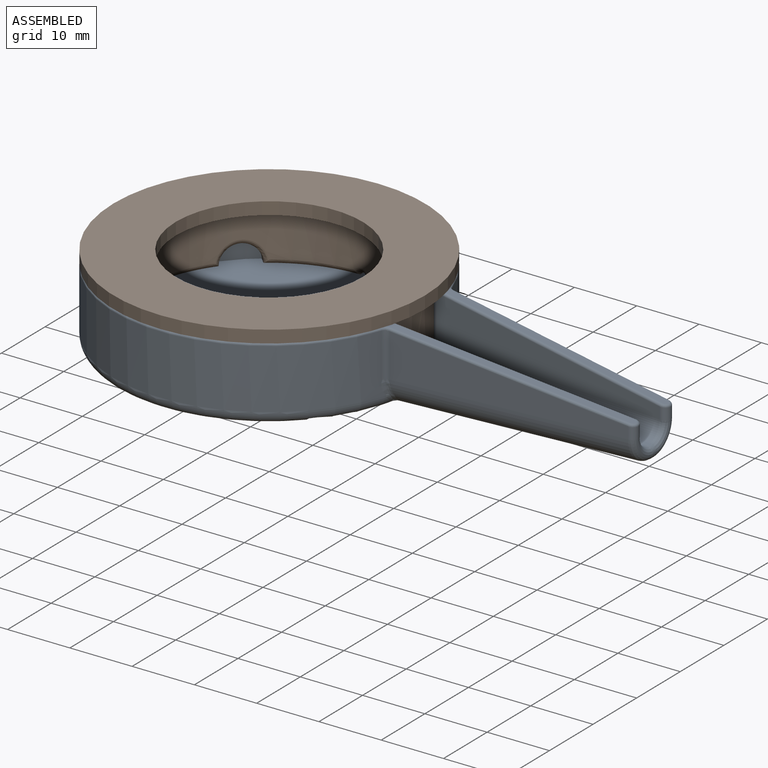
[diagram: assembled view]
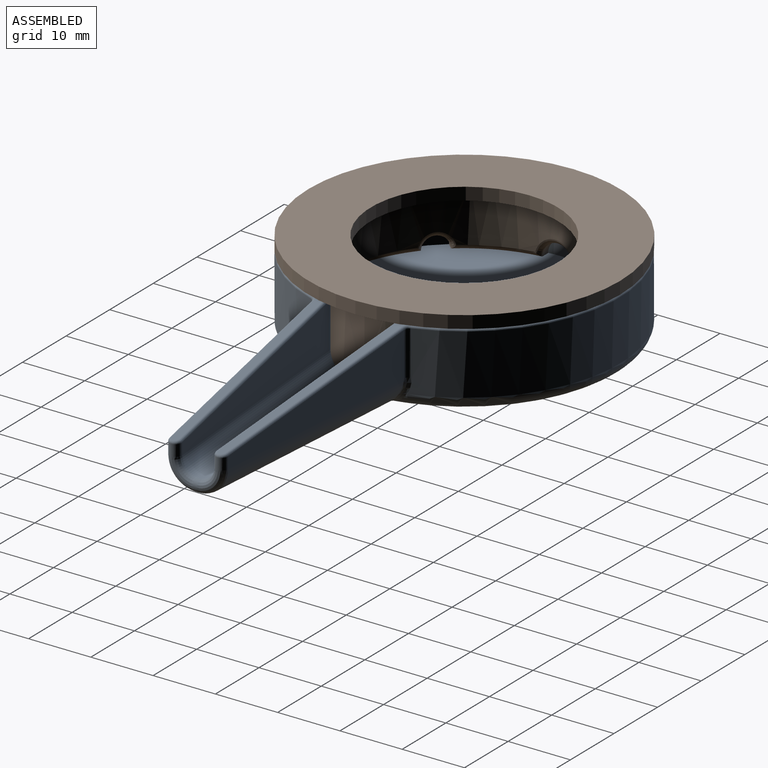
[diagram: assembled view, second angle]
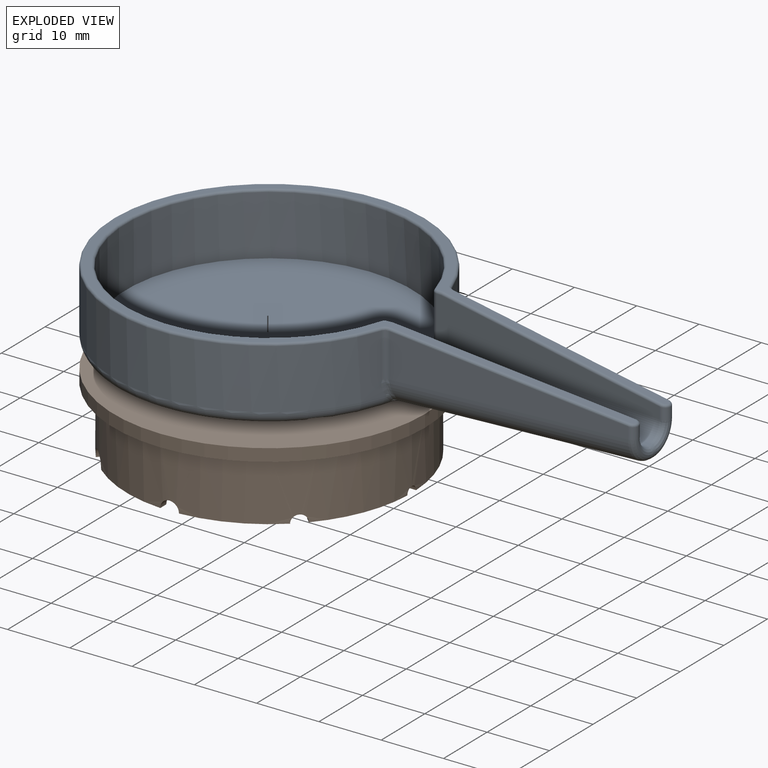
[diagram: exploded view]
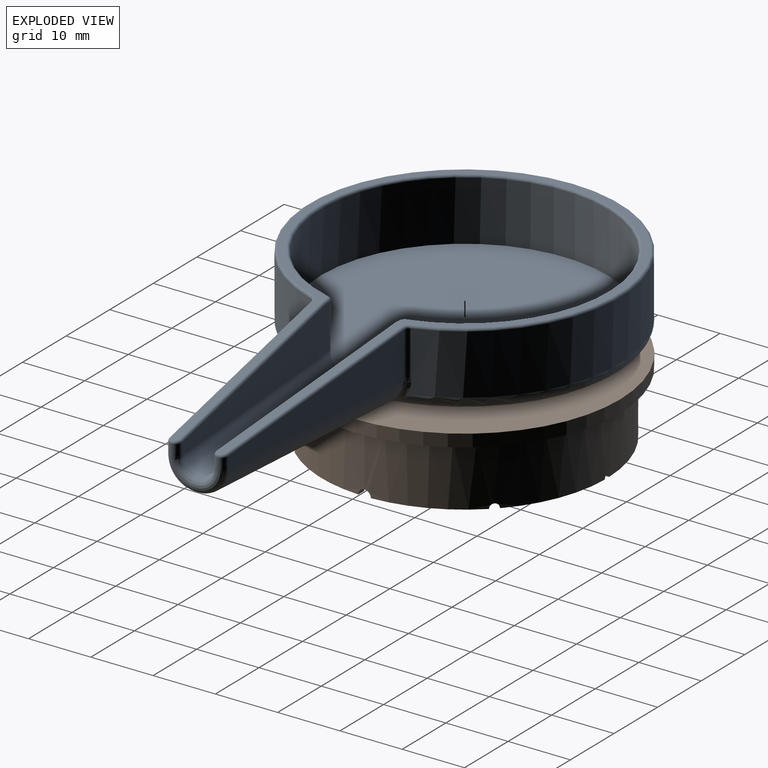
[diagram: exploded view, second angle]
ASSEMBLY  parts=2 mates=2
PART A: 55 faces, bbox 89.2x54.5x12.4 mm
  f0: plane 49.2x48.38mm, normal (0,0,1), area 166.8mm2, adj f23,f27,f38,f40,f42,f45,f47,f49
  f1: plane 36.41x7.01mm, normal (0.07,1,0), area 162.4mm2, adj f7,f21,f24,f48
  f2: cylinder r=25mm len=50mm, axis (0,0,-1), area 1350.7mm2, adj f5,f24,f25,f28,f29,f40
  f3: plane 36.41x7.01mm, normal (0.07,-1,0), area 162.4mm2, adj f6,f16,f28,f37
  f4: plane 83.85x46mm, normal (0,0,-1), area 1785.8mm2, adj f5,f6,f7,f18
  f5: torus R=23mm, axis (0,0,1), area 445.4mm2, adj f2,f4,f26,f30
  f6: cylinder r=4.5mm len=38.39mm, axis (1,0.07,0), area 261.6mm2, adj f3,f4,f17,f29,f30
  f7: cylinder r=4.5mm len=38.39mm, axis (-1,0.07,0), area 261.6mm2, adj f1,f4,f20,f25,f26
  f8: plane 37.79x7.13mm, normal (-0.07,-1,0), area 172.5mm2, adj f13,f21,f31,f52,f53,f54
  f9: cylinder r=23mm len=46mm, axis (0,0,-1), area 1267.8mm2, adj f11,f31,f32,f33,f34,f49
  f10: plane 37.79x7.13mm, normal (-0.07,1,0), area 172.5mm2, adj f12,f16,f33,f41,f43,f45
  f11: plane 84.19x46.34mm, normal (0,0,1), area 1787.4mm2, adj f9,f12,f13,f18,f32,f34
  f12: cylinder r=2.5mm len=38.21mm, axis (1,0.07,0), area 147.3mm2, adj f10,f11,f19,f34
  f13: cylinder r=2.5mm len=38.21mm, axis (-1,0.07,0), area 147.3mm2, adj f8,f11,f22,f32
  f14: plane 37.86x5.56mm, normal (0.14,0,0.99), area 45.5mm2, adj f23,f46,f48,f50,f52
  f15: plane 37.86x5.56mm, normal (0.14,0,0.99), area 45.5mm2, adj f27,f35,f37,f39,f41
  f16: cylinder r=1mm len=2mm, axis (0,0,1), area 6mm2, adj f3,f10,f17,f19,f39
  f17: bspline ~4.51x4.5mm, area 9.9mm2, adj f6,f16,f18,f19
  f18: cylinder r=1mm len=2mm, axis (0,-1,0), area 1.3mm2, adj f4,f11,f17,f19,f20,f22
  f19: bspline ~3.51x3.5mm, area 7.3mm2, adj f12,f16,f17,f18
  f20: bspline ~4.51x4.5mm, area 9.9mm2, adj f7,f18,f21,f22
  f21: cylinder r=1mm len=2mm, axis (0,0,-1), area 6mm2, adj f1,f8,f20,f22,f50
  f22: bspline ~3.66x3.5mm, area 7.3mm2, adj f13,f18,f20,f21
  f23: cylinder r=1mm len=1.41mm, axis (0,1,0), area 0.2mm2, adj f0,f14,f44,f54
  f24: cylinder r=1mm len=7.1mm, axis (0,0,-1), area 8.2mm2, adj f1,f2,f25,f42,f44,f46
  f25: bspline ~4.72x1.82mm, area 2.8mm2, adj f2,f7,f24,f26
  f26: bspline ~4.55x2.59mm, area 2.3mm2, adj f5,f7,f25
  f27: cylinder r=1mm len=1.41mm, axis (0,1,0), area 0.2mm2, adj f0,f15,f36,f43
  f28: cylinder r=1mm len=7.1mm, axis (0,0,-1), area 8.2mm2, adj f2,f3,f29,f35,f36,f38
  f29: bspline ~4.72x1.82mm, area 2.8mm2, adj f2,f6,f28,f30
  f30: bspline ~4.77x3.01mm, area 2.3mm2, adj f5,f6,f29
  f31: cylinder r=1mm len=7.1mm, axis (0,0,-1), area 8.7mm2, adj f8,f9,f32,f51
  f32: bspline ~4.02x3.91mm, area 4.5mm2, adj f9,f11,f13,f31
  f33: cylinder r=1mm len=7.1mm, axis (0,0,-1), area 8.7mm2, adj f9,f10,f34,f47
  f34: bspline ~4.02x3.91mm, area 4.5mm2, adj f9,f11,f12,f33
  f35: bspline ~0.63x0.54mm, area 0.3mm2, adj f15,f28,f36,f37
  f36: bspline ~0.74x0.6mm, area 0.1mm2, adj f27,f28,f35,f38
  f37: cylinder r=0.4mm len=36.44mm, axis (-0.99,-0.07,0.14), area 23mm2, adj f3,f15,f35,f39
  f38: torus R=1.4mm, axis (0,0,1), area 0.4mm2, adj f0,f28,f36,f40
  f39: bspline ~2x1.17mm, area 1.6mm2, adj f15,f16,f37,f41
  f40: torus R=24.6mm, axis (0,0,1), area 87.8mm2, adj f0,f2,f38,f42
  f41: cylinder r=0.4mm len=37.03mm, axis (0.99,0.07,-0.14), area 23.7mm2, adj f10,f15,f39,f43
  f42: torus R=1.4mm, axis (0,0,1), area 0.4mm2, adj f0,f24,f40,f44
  f43: bspline ~0.41x0.41mm, area 0.1mm2, adj f10,f27,f41,f45
  f44: bspline ~0.74x0.6mm, area 0.1mm2, adj f23,f24,f42,f46
  f45: cylinder r=0.4mm len=0.77mm, axis (1,0.07,0), area 0.5mm2, adj f0,f10,f43,f47
  f46: bspline ~0.63x0.54mm, area 0.3mm2, adj f14,f24,f44,f48
  f47: torus R=0.6mm, axis (0,0,1), area 0.7mm2, adj f0,f33,f45,f49
  f48: cylinder r=0.4mm len=36.44mm, axis (0.99,-0.07,-0.14), area 23mm2, adj f1,f14,f46,f50
  f49: torus R=23.4mm, axis (0,0,1), area 83.3mm2, adj f0,f9,f47,f51
  f50: bspline ~2x1.07mm, area 1.5mm2, adj f14,f21,f48,f52
  f51: torus R=0.6mm, axis (0,0,1), area 0.7mm2, adj f0,f31,f49,f53
  f52: cylinder r=0.4mm len=37.03mm, axis (-0.99,0.07,0.14), area 23.7mm2, adj f8,f14,f50,f54
  f53: cylinder r=0.4mm len=0.77mm, axis (-1,0.07,0), area 0.5mm2, adj f0,f8,f51,f54
  f54: bspline ~0.41x0.41mm, area 0.1mm2, adj f8,f23,f52,f53
PART B: 39 faces, bbox 50x50x12.6 mm
  f0: plane 13.44x5.59mm, normal (0,0,1), area 16.8mm2, adj f1,f15,f22,f34
  f1: cylinder r=22.9mm len=45.8mm, axis (0,0,-1), area 1400.6mm2, adj f0,f3,f4,f5,f6,f7,f8,f12
  f2: cylinder r=20.9mm len=41.8mm, axis (0,0,-1), area 1163.6mm2, adj f14,f23,f24,f25,f26,f27,f28,f29
  f3: plane 11.45x5.46mm, normal (0,0,1), area 14.4mm2, adj f1,f21,f22,f38
  f4: plane 12.24x6.09mm, normal (0,0,1), area 15.6mm2, adj f1,f20,f21,f35
  f5: plane 13.23x6.17mm, normal (0,0,1), area 16.8mm2, adj f1,f19,f20,f31
  f6: plane 13.8x6.66mm, normal (0,0,1), area 17.7mm2, adj f1,f18,f19,f27
  f7: plane 14.3x6.69mm, normal (0,0,1), area 18.3mm2, adj f1,f17,f18,f23
  f8: plane 14.67x7.03mm, normal (0,0,1), area 18.9mm2, adj f1,f16,f17,f26
  f9: cylinder r=15mm len=30mm, axis (0,0,-1), area 188.5mm2, adj f10,f14
  f10: plane 50x50mm, normal (0,0,-1), area 1256.6mm2, adj f9,f11
  f11: cylinder r=25mm len=50mm, axis (0,0,-1), area 314.2mm2, adj f10,f12
  f12: plane 50x50mm, normal (0,0,1), area 316mm2, adj f1,f11
  f13: plane 15.17x7.05mm, normal (0,0,1), area 19.5mm2, adj f1,f15,f16,f30
  f14: plane 41.8x41.8mm, normal (0,0,1), area 665.4mm2, adj f2,f9
  f15: cylinder r=0.5mm len=1.23mm, axis (0,-1,0), area 1.9mm2, adj f0,f1,f13,f30,f32,f34
  f16: cylinder r=0.75mm len=1.94mm, axis (0.71,-0.71,0), area 2.9mm2, adj f1,f8,f13,f26,f28,f30
  f17: cylinder r=1mm len=2mm, axis (1,0,0), area 3.9mm2, adj f1,f7,f8,f23,f24,f26
  f18: cylinder r=1.25mm len=2.69mm, axis (0.71,0.71,0), area 4.8mm2, adj f1,f6,f7,f23,f25,f27
  f19: cylinder r=1.5mm len=3mm, axis (0,1,0), area 5.8mm2, adj f1,f5,f6,f27,f29,f31
  f20: cylinder r=2mm len=3.81mm, axis (-0.71,0.71,0), area 7.8mm2, adj f1,f4,f5,f31,f33,f35
  f21: cylinder r=2.5mm len=5mm, axis (-1,0,0), area 9.9mm2, adj f1,f3,f4,f35,f37,f38
  f22: cylinder r=3mm len=5.33mm, axis (-0.71,-0.71,0), area 12mm2, adj f0,f1,f3,f34,f36,f38
  f23: bspline ~14.73x6.58mm, area 16.8mm2, adj f2,f7,f17,f18,f24,f25
  f24: bspline ~3.54x2.08mm, area 4mm2, adj f2,f17,f23,f26
  f25: bspline ~2.84x2.84mm, area 4.9mm2, adj f2,f18,f23,f27
  f26: bspline ~15.13x6.93mm, area 17.5mm2, adj f2,f8,f16,f17,f24,f28
  f27: bspline ~14.2x6.55mm, area 16.2mm2, adj f2,f6,f18,f19,f25,f29
  f28: bspline ~2.19x2.19mm, area 3.2mm2, adj f2,f16,f26,f30
  f29: bspline ~4.43x2.29mm, area 5.8mm2, adj f2,f19,f27,f31
  f30: bspline ~15.66x6.95mm, area 18.1mm2, adj f2,f13,f15,f16,f28,f32
  f31: bspline ~13.59x6.03mm, area 15.3mm2, adj f2,f5,f19,f20,f29,f33
  f32: bspline ~2.58x1.5mm, area -0.8mm2, adj f2,f15,f30,f34
  f33: bspline ~3.92x3.92mm, area 7.6mm2, adj f2,f20,f31,f35
  f34: bspline ~13.79x5.42mm, area 15.4mm2, adj f0,f2,f15,f22,f32,f36
  f35: bspline ~11.46x5.48mm, area 14.1mm2, adj f2,f4,f20,f21,f33,f37
  f36: bspline ~5.3x5.3mm, area 11mm2, adj f2,f22,f34,f38
  f37: bspline ~6.36x3.28mm, area 9.3mm2, adj f2,f21,f35,f38
  f38: bspline ~11.68x5.28mm, area 12.9mm2, adj f2,f3,f21,f22,f36,f37
PLACE A t=(-11.86,2.67,-6.76)mm fixed
PLACE B rot(axis=(0,1,0),180deg) t=(-11.86,2.67,7.24)mm
MATE slider B.f1 <-> A.f2  axis (0,0,1) through (-11.86,2.67,0.24)mm
MATE planar B.f1 <-> A.f0  axis (0,0,-1) through (-11.86,2.67,5.24)mm
